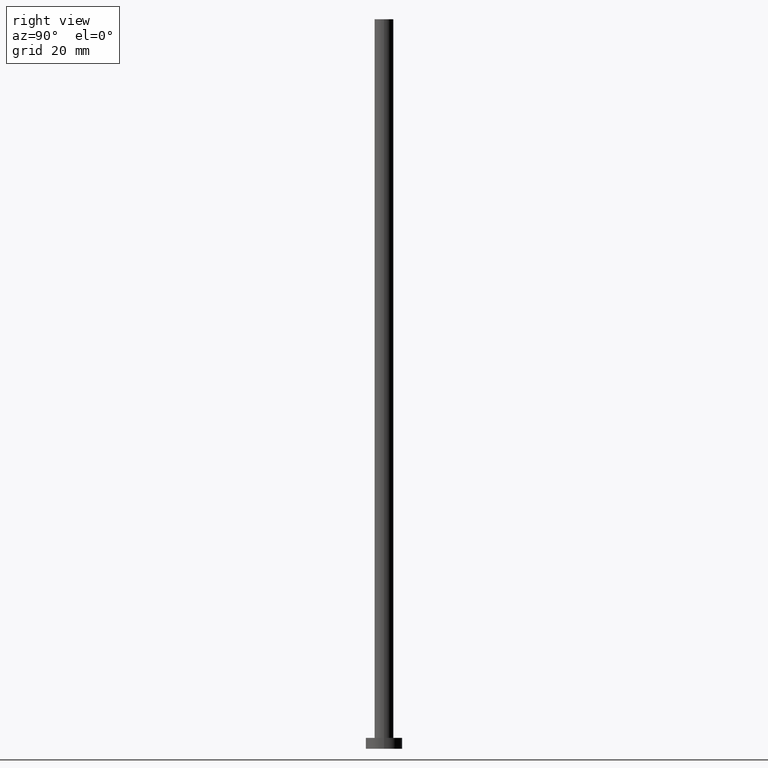
[diagram: clean part render]
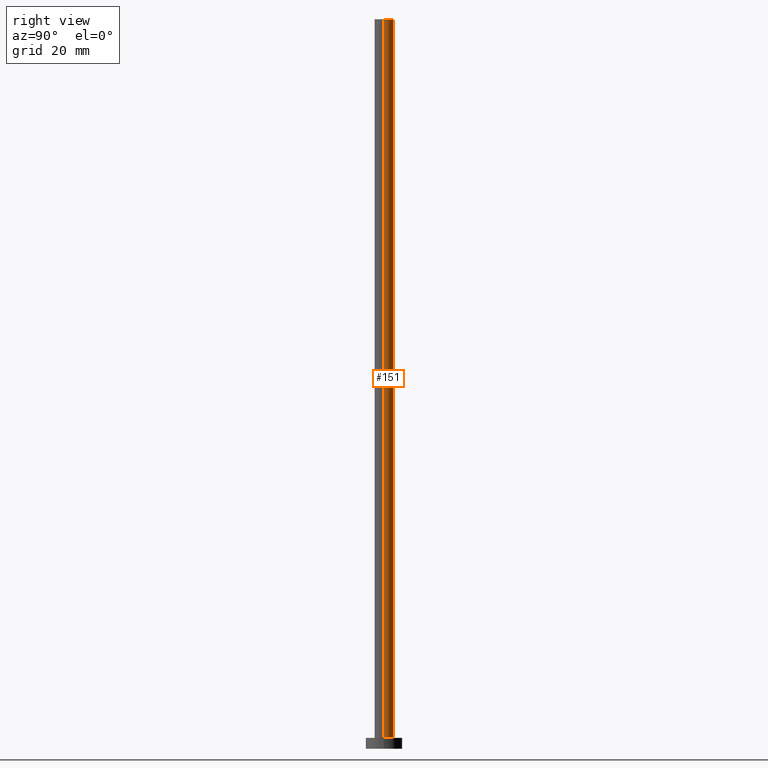
[diagram: same view with one face highlighted and labeled with its STEP entity id]
A machine part, right view. The second image highlights one B-rep face of the part: STEP entity #151.
In plain terms, the highlighted cylindrical surface (edge-blend (fillet) strip) has radius 2.6 mm, axis along (-0, -0, -1).
Its self-contained STEP definition (entity closure, byte-faithful):
#2 = EDGE_CURVE ( 'NONE', #66, #246, #89, .T. ) ;
#5 = FACE_OUTER_BOUND ( 'NONE', #183, .T. ) ;
#19 = EDGE_CURVE ( 'NONE', #49, #66, #185, .T. ) ;
#32 = CIRCLE ( 'NONE', #152, 2.600000000000000089 ) ;
#45 = ORIENTED_EDGE ( 'NONE', *, *, #48, .T. ) ;
#48 = EDGE_CURVE ( 'NONE', #49, #141, #251, .T. ) ;
#49 = VERTEX_POINT ( 'NONE', #193 ) ;
#53 = DIRECTION ( 'NONE',  ( 1.000000000000000000, 0.000000000000000000, 0.000000000000000000 ) ) ;
#66 = VERTEX_POINT ( 'NONE', #112 ) ;
#69 = ORIENTED_EDGE ( 'NONE', *, *, #2, .F. ) ;
#70 = AXIS2_PLACEMENT_3D ( 'NONE', #153, #72, #53 ) ;
#72 = DIRECTION ( 'NONE',  ( 0.000000000000000000, 0.000000000000000000, 1.000000000000000000 ) ) ;
#76 = CYLINDRICAL_SURFACE ( 'NONE', #180, 2.600000000000000089 ) ;
#89 = LINE ( 'NONE', #90, #119 ) ;
#90 = CARTESIAN_POINT ( 'NONE',  ( -2.600000000000000089, 0.000000000000000000, 200.0000000000000000 ) ) ;
#94 = CARTESIAN_POINT ( 'NONE',  ( 0.000000000000000000, 0.000000000000000000, 3.000000000000000000 ) ) ;
#110 = DIRECTION ( 'NONE',  ( -0.000000000000000000, -0.000000000000000000, -1.000000000000000000 ) ) ;
#111 = CARTESIAN_POINT ( 'NONE',  ( 2.600000000000000089, 3.184081677783118191E-16, 200.0000000000000000 ) ) ;
#112 = CARTESIAN_POINT ( 'NONE',  ( -2.600000000000000089, 0.000000000000000000, 200.0000000000000000 ) ) ;
#119 = VECTOR ( 'NONE', #110, 1000.000000000000000 ) ;
#120 = CARTESIAN_POINT ( 'NONE',  ( -2.600000000000000089, 0.000000000000000000, 3.000000000000000000 ) ) ;
#132 = EDGE_CURVE ( 'NONE', #141, #246, #32, .T. ) ;
#141 = VERTEX_POINT ( 'NONE', #237 ) ;
#151 = ADVANCED_FACE ( 'NONE', ( #5 ), #76, .T. ) ;
#152 = AXIS2_PLACEMENT_3D ( 'NONE', #94, #194, #211 ) ;
#153 = CARTESIAN_POINT ( 'NONE',  ( 0.000000000000000000, 0.000000000000000000, 200.0000000000000000 ) ) ;
#160 = CARTESIAN_POINT ( 'NONE',  ( 0.000000000000000000, 0.000000000000000000, 200.0000000000000000 ) ) ;
#161 = ORIENTED_EDGE ( 'NONE', *, *, #19, .F. ) ;
#163 = ORIENTED_EDGE ( 'NONE', *, *, #132, .T. ) ;
#176 = DIRECTION ( 'NONE',  ( -1.000000000000000000, 0.000000000000000000, 0.000000000000000000 ) ) ;
#180 = AXIS2_PLACEMENT_3D ( 'NONE', #160, #214, #176 ) ;
#183 = EDGE_LOOP ( 'NONE', ( #161, #45, #163, #69 ) ) ;
#185 = CIRCLE ( 'NONE', #70, 2.600000000000000089 ) ;
#193 = CARTESIAN_POINT ( 'NONE',  ( 2.600000000000000089, 3.184081677783118191E-16, 200.0000000000000000 ) ) ;
#194 = DIRECTION ( 'NONE',  ( 0.000000000000000000, 0.000000000000000000, 1.000000000000000000 ) ) ;
#210 = VECTOR ( 'NONE', #213, 1000.000000000000000 ) ;
#211 = DIRECTION ( 'NONE',  ( 1.000000000000000000, 0.000000000000000000, 0.000000000000000000 ) ) ;
#213 = DIRECTION ( 'NONE',  ( -0.000000000000000000, -0.000000000000000000, -1.000000000000000000 ) ) ;
#214 = DIRECTION ( 'NONE',  ( -0.000000000000000000, -0.000000000000000000, -1.000000000000000000 ) ) ;
#237 = CARTESIAN_POINT ( 'NONE',  ( 2.600000000000000089, 3.184081677783118191E-16, 3.000000000000000000 ) ) ;
#246 = VERTEX_POINT ( 'NONE', #120 ) ;
#251 = LINE ( 'NONE', #111, #210 ) ;